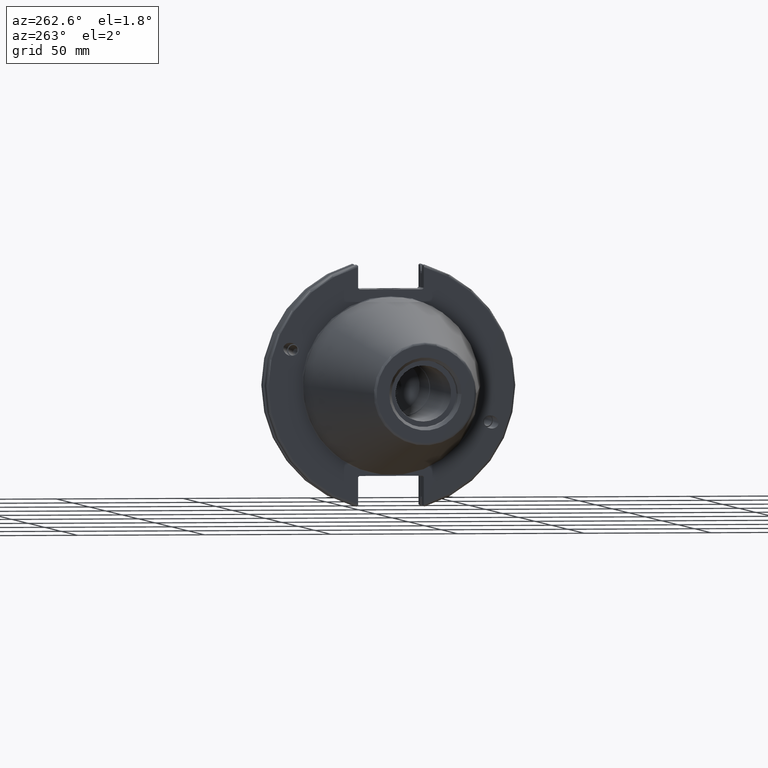
[diagram: clean part render]
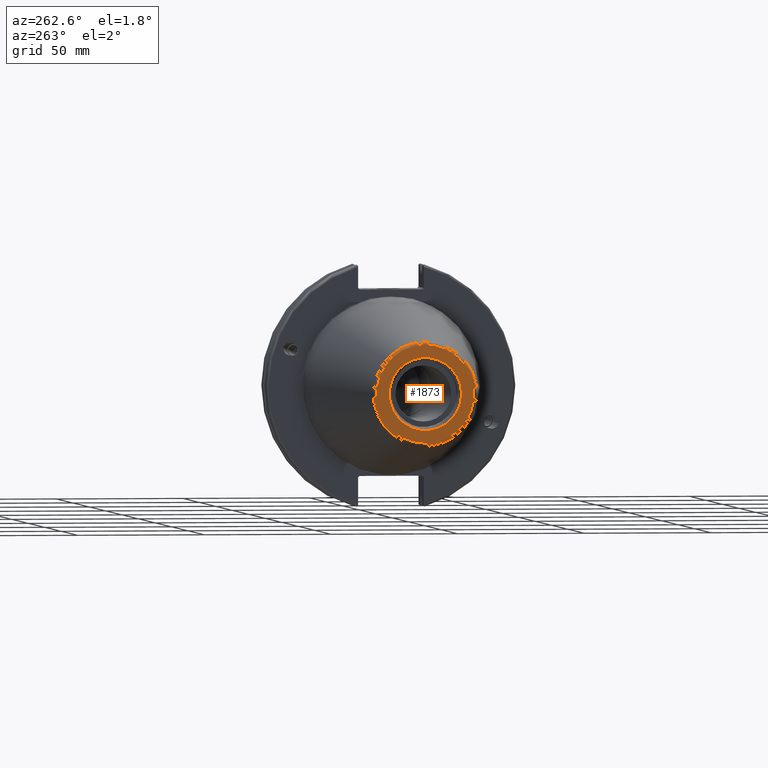
[diagram: same view with one face highlighted and labeled with its STEP entity id]
A machine part, auxiliary view. The second image highlights one B-rep face of the part: STEP entity #1873.
In plain terms, the highlighted planar face has unit normal (-1, 0, 0).
Its self-contained STEP definition (entity closure, byte-faithful):
#88=FACE_BOUND('',#585,.T.);
#111=PLANE('',#2115);
#461=FACE_OUTER_BOUND('',#584,.T.);
#584=EDGE_LOOP('',(#1645));
#585=EDGE_LOOP('',(#1646));
#727=CIRCLE('',#2114,19.2435889303637);
#728=CIRCLE('',#2116,14.2875);
#917=VERTEX_POINT('',#3694);
#918=VERTEX_POINT('',#3698);
#1177=EDGE_CURVE('',#917,#917,#727,.T.);
#1178=EDGE_CURVE('',#918,#918,#728,.T.);
#1645=ORIENTED_EDGE('',*,*,#1177,.F.);
#1646=ORIENTED_EDGE('',*,*,#1178,.T.);
#1873=ADVANCED_FACE('',(#461,#88),#111,.T.);
#2114=AXIS2_PLACEMENT_3D('',#3696,#2619,#2620);
#2115=AXIS2_PLACEMENT_3D('',#3697,#2621,#2622);
#2116=AXIS2_PLACEMENT_3D('',#3699,#2623,#2624);
#2619=DIRECTION('center_axis',(1.,0.,0.));
#2620=DIRECTION('ref_axis',(0.,-1.,1.83697019872103E-16));
#2621=DIRECTION('center_axis',(-1.,0.,0.));
#2622=DIRECTION('ref_axis',(0.,0.,1.));
#2623=DIRECTION('center_axis',(1.,0.,0.));
#2624=DIRECTION('ref_axis',(0.,0.,-1.));
#3694=CARTESIAN_POINT('',(-101.6,-2.35665995876774E-15,19.2435889303637));
#3696=CARTESIAN_POINT('Origin',(-101.6,0.,0.));
#3697=CARTESIAN_POINT('Origin',(-101.6,20.1083333333333,0.));
#3698=CARTESIAN_POINT('',(-101.6,-14.2875,-1.74971411428178E-15));
#3699=CARTESIAN_POINT('Origin',(-101.6,0.,0.));